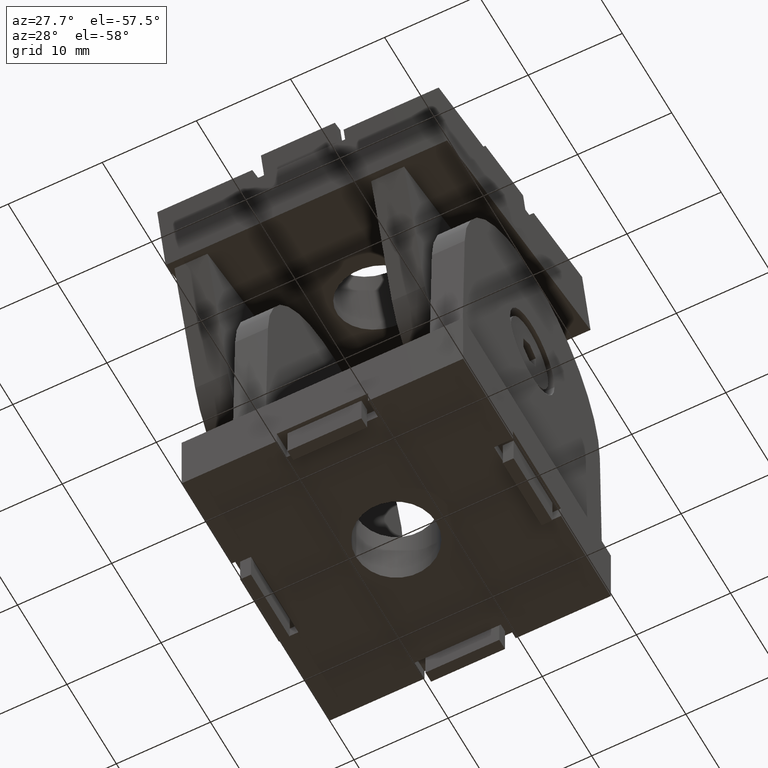
[diagram: clean part render]
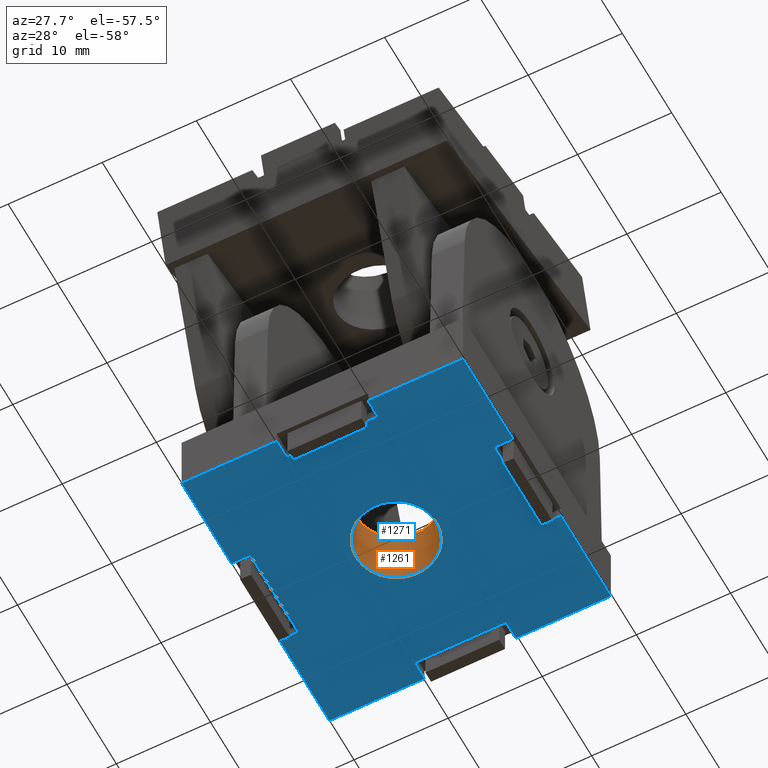
[diagram: same view with the hole feature highlighted: cylindrical wall and planar end face, labeled with their STEP entity ids]
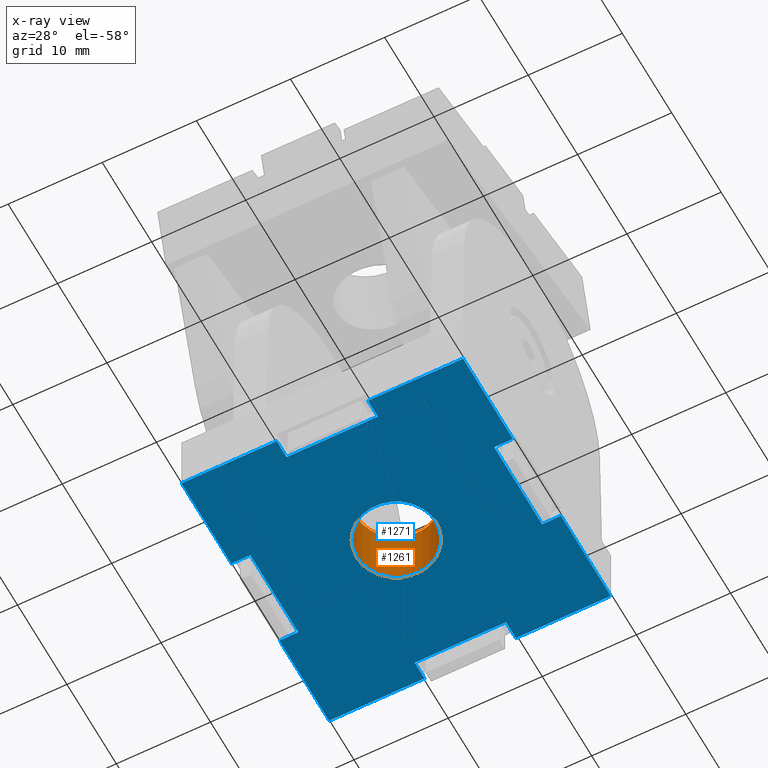
[diagram: x-ray of the same camera — body ghosted, the hole faces saturated]
A machine part, auxiliary view. The highlighted faces form one hole feature of diameter 8.5 mm: the cylindrical wall (entity #1261, orange) and its adjacent planar end face (entity #1271, blue) — they share a circular edge in the B-rep.
The next image is the same camera in x-ray (body ghosted, the hole faces saturated) — the bore reads through the body.
Wall:
#328=CYLINDRICAL_SURFACE('',#1346,4.25);
#345=FACE_BOUND('',#489,.T.);
#404=FACE_OUTER_BOUND('',#488,.T.);
#488=EDGE_LOOP('',(#1030));
#489=EDGE_LOOP('',(#1031));
#535=CIRCLE('',#1347,4.25);
#536=CIRCLE('',#1348,4.25);
#632=VERTEX_POINT('',#1980);
#633=VERTEX_POINT('',#1982);
#780=EDGE_CURVE('',#632,#632,#535,.T.);
#781=EDGE_CURVE('',#633,#633,#536,.T.);
#1030=ORIENTED_EDGE('',*,*,#780,.F.);
#1031=ORIENTED_EDGE('',*,*,#781,.F.);
#1261=ADVANCED_FACE('',(#404,#345),#328,.F.);
#1346=AXIS2_PLACEMENT_3D('',#1979,#1613,#1614);
#1347=AXIS2_PLACEMENT_3D('',#1981,#1615,#1616);
#1348=AXIS2_PLACEMENT_3D('',#1983,#1617,#1618);
#1613=DIRECTION('center_axis',(0.,0.,-1.));
#1614=DIRECTION('ref_axis',(-1.,0.,0.));
#1615=DIRECTION('center_axis',(0.,0.,-1.));
#1616=DIRECTION('ref_axis',(-1.,0.,0.));
#1617=DIRECTION('center_axis',(0.,0.,1.));
#1618=DIRECTION('ref_axis',(-1.,0.,0.));
#1979=CARTESIAN_POINT('Origin',(0.,0.,55.598830922961));
#1980=CARTESIAN_POINT('',(4.25,-5.20474889637625E-16,7.1));
#1981=CARTESIAN_POINT('Origin',(0.,0.,7.1));
#1982=CARTESIAN_POINT('',(-4.25,0.,0.));
#1983=CARTESIAN_POINT('Origin',(0.,0.,0.));
End face:
#50=LINE('',#1766,#190);
#54=LINE('',#1774,#194);
#57=LINE('',#1780,#197);
#65=LINE('',#1797,#205);
#69=LINE('',#1805,#209);
#72=LINE('',#1811,#212);
#80=LINE('',#1828,#220);
#84=LINE('',#1836,#224);
#87=LINE('',#1842,#227);
#95=LINE('',#1859,#235);
#99=LINE('',#1868,#239);
#103=LINE('',#1875,#243);
#110=LINE('',#1889,#250);
#114=LINE('',#1896,#254);
#115=LINE('',#1899,#255);
#118=LINE('',#1903,#258);
#119=LINE('',#1906,#259);
#122=LINE('',#1910,#262);
#169=LINE('',#2017,#309);
#171=LINE('',#2019,#311);
#190=VECTOR('',#1432,2.00000000000001);
#194=VECTOR('',#1438,9.7);
#197=VECTOR('',#1443,2.);
#205=VECTOR('',#1455,9.7);
#209=VECTOR('',#1461,2.00000000000001);
#212=VECTOR('',#1466,2.00000000000001);
#220=VECTOR('',#1478,1.99999999999998);
#224=VECTOR('',#1484,9.7);
#227=VECTOR('',#1489,2.);
#235=VECTOR('',#1501,1.99999999999993);
#239=VECTOR('',#1507,1.99999999999993);
#243=VECTOR('',#1513,9.7);
#250=VECTOR('',#1524,10.1);
#254=VECTOR('',#1528,10.1);
#255=VECTOR('',#1531,10.1);
#258=VECTOR('',#1534,10.1);
#259=VECTOR('',#1537,10.1);
#262=VECTOR('',#1540,10.1);
#309=VECTOR('',#1655,10.1);
#311=VECTOR('',#1657,10.1);
#348=FACE_BOUND('',#502,.T.);
#414=FACE_OUTER_BOUND('',#501,.T.);
#501=EDGE_LOOP('',(#1074,#1075,#1076,#1077,#1078,#1079,#1080,#1081,#1082,
#1083,#1084,#1085,#1086,#1087,#1088,#1089,#1090,#1091,#1092,#1093));
#502=EDGE_LOOP('',(#1094));
#536=CIRCLE('',#1348,4.25);
#560=VERTEX_POINT('',#1764);
#561=VERTEX_POINT('',#1765);
#564=VERTEX_POINT('',#1773);
#566=VERTEX_POINT('',#1779);
#572=VERTEX_POINT('',#1795);
#573=VERTEX_POINT('',#1796);
#576=VERTEX_POINT('',#1804);
#578=VERTEX_POINT('',#1810);
#584=VERTEX_POINT('',#1826);
#585=VERTEX_POINT('',#1827);
#588=VERTEX_POINT('',#1835);
#590=VERTEX_POINT('',#1841);
#596=VERTEX_POINT('',#1857);
#597=VERTEX_POINT('',#1858);
#600=VERTEX_POINT('',#1866);
#601=VERTEX_POINT('',#1867);
#608=VERTEX_POINT('',#1888);
#611=VERTEX_POINT('',#1894);
#612=VERTEX_POINT('',#1898);
#614=VERTEX_POINT('',#1905);
#633=VERTEX_POINT('',#1982);
#675=EDGE_CURVE('',#560,#561,#50,.T.);
#679=EDGE_CURVE('',#564,#560,#54,.T.);
#682=EDGE_CURVE('',#566,#564,#57,.T.);
#690=EDGE_CURVE('',#572,#573,#65,.T.);
#694=EDGE_CURVE('',#576,#572,#69,.T.);
#697=EDGE_CURVE('',#573,#578,#72,.T.);
#705=EDGE_CURVE('',#584,#585,#80,.T.);
#709=EDGE_CURVE('',#588,#584,#84,.T.);
#712=EDGE_CURVE('',#590,#588,#87,.T.);
#720=EDGE_CURVE('',#596,#597,#95,.T.);
#724=EDGE_CURVE('',#600,#601,#99,.T.);
#728=EDGE_CURVE('',#597,#600,#103,.T.);
#735=EDGE_CURVE('',#608,#566,#110,.T.);
#739=EDGE_CURVE('',#561,#611,#114,.T.);
#740=EDGE_CURVE('',#612,#576,#115,.T.);
#743=EDGE_CURVE('',#578,#608,#118,.T.);
#744=EDGE_CURVE('',#614,#596,#119,.T.);
#747=EDGE_CURVE('',#601,#612,#122,.T.);
#781=EDGE_CURVE('',#633,#633,#536,.T.);
#798=EDGE_CURVE('',#611,#590,#169,.T.);
#800=EDGE_CURVE('',#585,#614,#171,.T.);
#1074=ORIENTED_EDGE('',*,*,#675,.T.);
#1075=ORIENTED_EDGE('',*,*,#739,.T.);
#1076=ORIENTED_EDGE('',*,*,#798,.T.);
#1077=ORIENTED_EDGE('',*,*,#712,.T.);
#1078=ORIENTED_EDGE('',*,*,#709,.T.);
#1079=ORIENTED_EDGE('',*,*,#705,.T.);
#1080=ORIENTED_EDGE('',*,*,#800,.T.);
#1081=ORIENTED_EDGE('',*,*,#744,.T.);
#1082=ORIENTED_EDGE('',*,*,#720,.T.);
#1083=ORIENTED_EDGE('',*,*,#728,.T.);
#1084=ORIENTED_EDGE('',*,*,#724,.T.);
#1085=ORIENTED_EDGE('',*,*,#747,.T.);
#1086=ORIENTED_EDGE('',*,*,#740,.T.);
#1087=ORIENTED_EDGE('',*,*,#694,.T.);
#1088=ORIENTED_EDGE('',*,*,#690,.T.);
#1089=ORIENTED_EDGE('',*,*,#697,.T.);
#1090=ORIENTED_EDGE('',*,*,#743,.T.);
#1091=ORIENTED_EDGE('',*,*,#735,.T.);
#1092=ORIENTED_EDGE('',*,*,#682,.T.);
#1093=ORIENTED_EDGE('',*,*,#679,.T.);
#1094=ORIENTED_EDGE('',*,*,#781,.T.);
#1204=PLANE('',#1360);
#1271=ADVANCED_FACE('',(#414,#348),#1204,.F.);
#1348=AXIS2_PLACEMENT_3D('',#1983,#1617,#1618);
#1360=AXIS2_PLACEMENT_3D('',#2020,#1658,#1659);
#1432=DIRECTION('',(0.,-1.,0.));
#1438=DIRECTION('',(-1.,9.15647855360954E-16,0.));
#1443=DIRECTION('',(0.,1.,0.));
#1455=DIRECTION('',(0.,-1.,0.));
#1461=DIRECTION('',(-1.,0.,0.));
#1466=DIRECTION('',(1.,0.,0.));
#1478=DIRECTION('',(-1.,0.,0.));
#1484=DIRECTION('',(-1.83129571072191E-15,1.,0.));
#1489=DIRECTION('',(1.,0.,0.));
#1501=DIRECTION('',(0.,-1.,0.));
#1507=DIRECTION('',(0.,1.,0.));
#1513=DIRECTION('',(1.,0.,0.));
#1524=DIRECTION('',(-1.,0.,0.));
#1528=DIRECTION('',(-1.,0.,0.));
#1531=DIRECTION('',(0.,-1.,0.));
#1534=DIRECTION('',(0.,-1.,0.));
#1537=DIRECTION('',(1.,0.,0.));
#1540=DIRECTION('',(1.,0.,0.));
#1617=DIRECTION('center_axis',(0.,0.,1.));
#1618=DIRECTION('ref_axis',(-1.,0.,0.));
#1655=DIRECTION('',(0.,1.,0.));
#1657=DIRECTION('',(0.,1.,0.));
#1658=DIRECTION('center_axis',(0.,0.,1.));
#1659=DIRECTION('ref_axis',(1.,0.,0.));
#1764=CARTESIAN_POINT('',(-4.85,-12.95,0.));
#1765=CARTESIAN_POINT('',(-4.85,-14.95,0.));
#1766=CARTESIAN_POINT('',(-4.85,-6.475,0.));
#1773=CARTESIAN_POINT('',(4.85,-12.95,0.));
#1774=CARTESIAN_POINT('',(2.42499999999999,-12.95,0.));
#1779=CARTESIAN_POINT('',(4.85,-14.95,0.));
#1780=CARTESIAN_POINT('',(4.85,-7.475,0.));
#1795=CARTESIAN_POINT('',(12.95,4.85,0.));
#1796=CARTESIAN_POINT('',(12.95,-4.85,0.));
#1797=CARTESIAN_POINT('',(12.95,2.425,0.));
#1804=CARTESIAN_POINT('',(14.95,4.85,0.));
#1805=CARTESIAN_POINT('',(7.475,4.85,0.));
#1810=CARTESIAN_POINT('',(14.95,-4.85,0.));
#1811=CARTESIAN_POINT('',(6.475,-4.85,0.));
#1826=CARTESIAN_POINT('',(-12.9500000000001,4.85,0.));
#1827=CARTESIAN_POINT('',(-14.9500000000001,4.85,0.));
#1828=CARTESIAN_POINT('',(-6.47500000000006,4.85,0.));
#1835=CARTESIAN_POINT('',(-12.9500000000001,-4.85,0.));
#1836=CARTESIAN_POINT('',(-12.9500000000001,-2.42500000000001,0.));
#1841=CARTESIAN_POINT('',(-14.9500000000001,-4.85,0.));
#1842=CARTESIAN_POINT('',(-7.47500000000005,-4.85,0.));
#1857=CARTESIAN_POINT('',(-4.85,14.95,0.));
#1858=CARTESIAN_POINT('',(-4.85,12.9500000000001,0.));
#1859=CARTESIAN_POINT('',(-4.85,7.47499999999999,0.));
#1866=CARTESIAN_POINT('',(4.85,12.9500000000001,0.));
#1867=CARTESIAN_POINT('',(4.85,14.95,0.));
#1868=CARTESIAN_POINT('',(4.85,6.47500000000003,0.));
#1875=CARTESIAN_POINT('',(-2.425,12.9500000000001,0.));
#1888=CARTESIAN_POINT('',(14.95,-14.95,0.));
#1889=CARTESIAN_POINT('',(14.95,-14.95,0.));
#1894=CARTESIAN_POINT('',(-14.95,-14.95,0.));
#1896=CARTESIAN_POINT('',(14.95,-14.95,0.));
#1898=CARTESIAN_POINT('',(14.95,14.95,0.));
#1899=CARTESIAN_POINT('',(14.95,14.95,0.));
#1903=CARTESIAN_POINT('',(14.95,14.95,0.));
#1905=CARTESIAN_POINT('',(-14.95,14.95,0.));
#1906=CARTESIAN_POINT('',(-14.95,14.95,0.));
#1910=CARTESIAN_POINT('',(-14.95,14.95,0.));
#1982=CARTESIAN_POINT('',(-4.25,0.,0.));
#1983=CARTESIAN_POINT('Origin',(0.,0.,0.));
#2017=CARTESIAN_POINT('',(-14.95,-14.95,0.));
#2019=CARTESIAN_POINT('',(-14.95,-14.95,0.));
#2020=CARTESIAN_POINT('Origin',(0.,0.,0.));